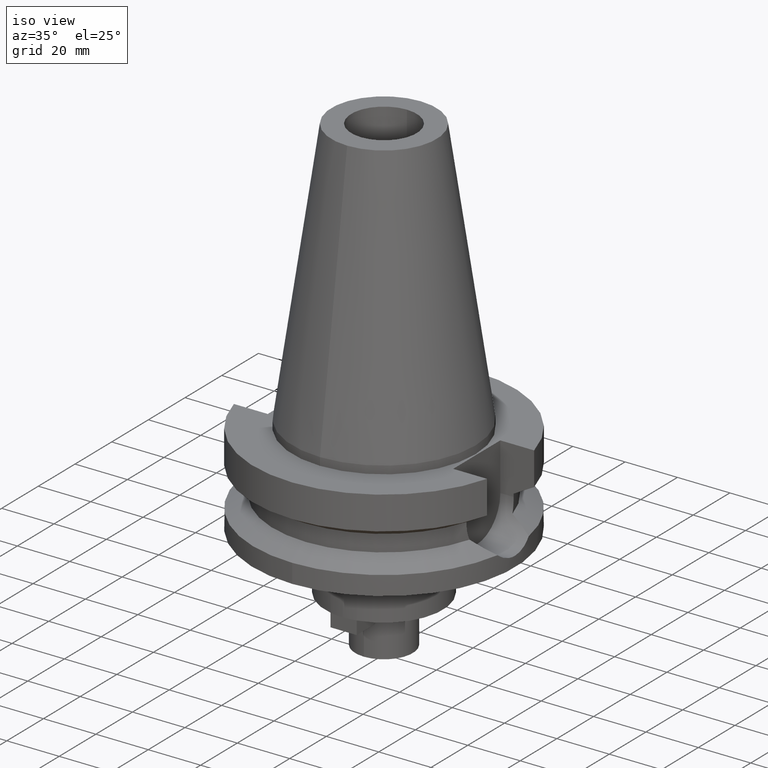
[diagram: clean part render]
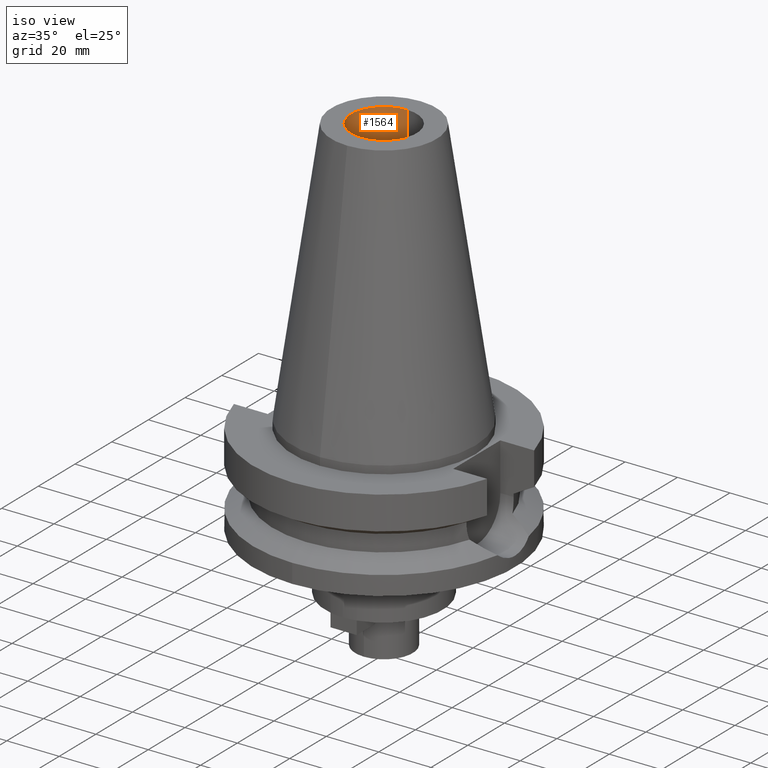
[diagram: same view with one face highlighted and labeled with its STEP entity id]
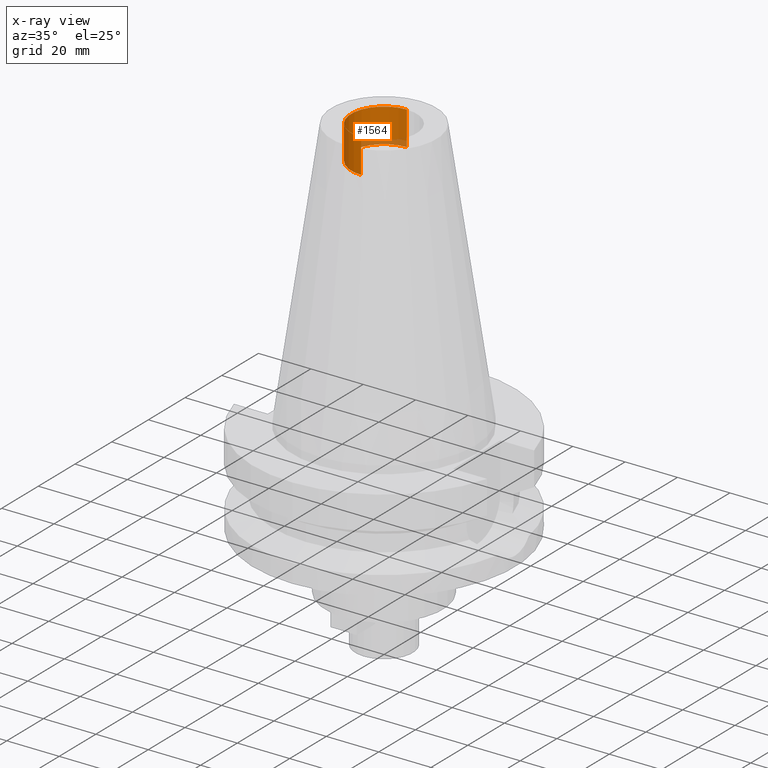
[diagram: x-ray of the same camera — body ghosted, the highlighted face saturated]
A machine part, iso view. The second image highlights one B-rep face of the part: STEP entity #1564.
The next image is the same camera in x-ray: the body ghosted, the highlighted face saturated — about 9% of this face is hidden behind the body in this view.
In plain terms, the highlighted cylindrical surface (partial cylindrical patch) has radius 12.5 mm, axis along (0, 0, -1).
Its self-contained STEP definition (entity closure, byte-faithful):
#17=DIRECTION('',(0.E0,0.E0,1.E0));
#18=VECTOR('',#17,1.3E1);
#19=CARTESIAN_POINT('',(0.E0,1.25E1,8.88E1));
#20=LINE('',#19,#18);
#25=DIRECTION('',(0.E0,0.E0,1.E0));
#26=VECTOR('',#25,1.3E1);
#27=CARTESIAN_POINT('',(0.E0,-1.25E1,8.88E1));
#28=LINE('',#27,#26);
#32=CARTESIAN_POINT('',(0.E0,2.581432987923E-14,8.88E1));
#33=DIRECTION('',(0.E0,0.E0,-1.E0));
#34=DIRECTION('',(0.E0,-1.E0,0.E0));
#35=AXIS2_PLACEMENT_3D('',#32,#33,#34);
#1260=CARTESIAN_POINT('',(0.E0,2.581432987923E-14,1.018E2));
#1261=DIRECTION('',(0.E0,0.E0,1.E0));
#1262=DIRECTION('',(0.E0,1.E0,0.E0));
#1263=AXIS2_PLACEMENT_3D('',#1260,#1261,#1262);
#1326=CARTESIAN_POINT('',(0.E0,1.25E1,8.88E1));
#1327=CARTESIAN_POINT('',(0.E0,1.25E1,1.018E2));
#1328=VERTEX_POINT('',#1326);
#1329=VERTEX_POINT('',#1327);
#1330=CARTESIAN_POINT('',(0.E0,-1.25E1,1.018E2));
#1331=VERTEX_POINT('',#1330);
#1332=CARTESIAN_POINT('',(0.E0,-1.25E1,8.88E1));
#1333=VERTEX_POINT('',#1332);
#1551=CARTESIAN_POINT('',(0.E0,2.581432987923E-14,1.1079E2));
#1552=DIRECTION('',(0.E0,0.E0,-1.E0));
#1553=DIRECTION('',(0.E0,-1.E0,0.E0));
#1554=AXIS2_PLACEMENT_3D('',#1551,#1552,#1553);
#1555=CYLINDRICAL_SURFACE('',#1554,1.25E1);
#1556=ORIENTED_EDGE('',*,*,#1540,.F.);
#1558=ORIENTED_EDGE('',*,*,#1557,.F.);
#1559=ORIENTED_EDGE('',*,*,#1544,.T.);
#1561=ORIENTED_EDGE('',*,*,#1560,.F.);
#1562=EDGE_LOOP('',(#1556,#1558,#1559,#1561));
#1563=FACE_OUTER_BOUND('',#1562,.F.);
#36=CIRCLE('',#35,1.25E1);
#1264=CIRCLE('',#1263,1.25E1);
#1540=EDGE_CURVE('',#1328,#1329,#20,.T.);
#1544=EDGE_CURVE('',#1333,#1331,#28,.T.);
#1557=EDGE_CURVE('',#1333,#1328,#36,.T.);
#1560=EDGE_CURVE('',#1329,#1331,#1264,.T.);
#1564=ADVANCED_FACE('',(#1563),#1555,.F.);